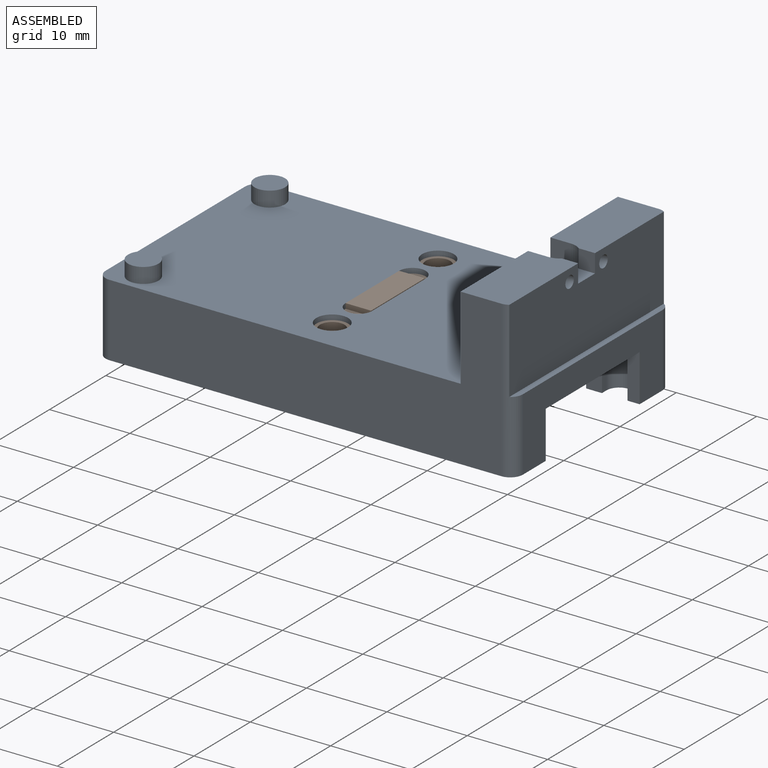
[diagram: assembled view]
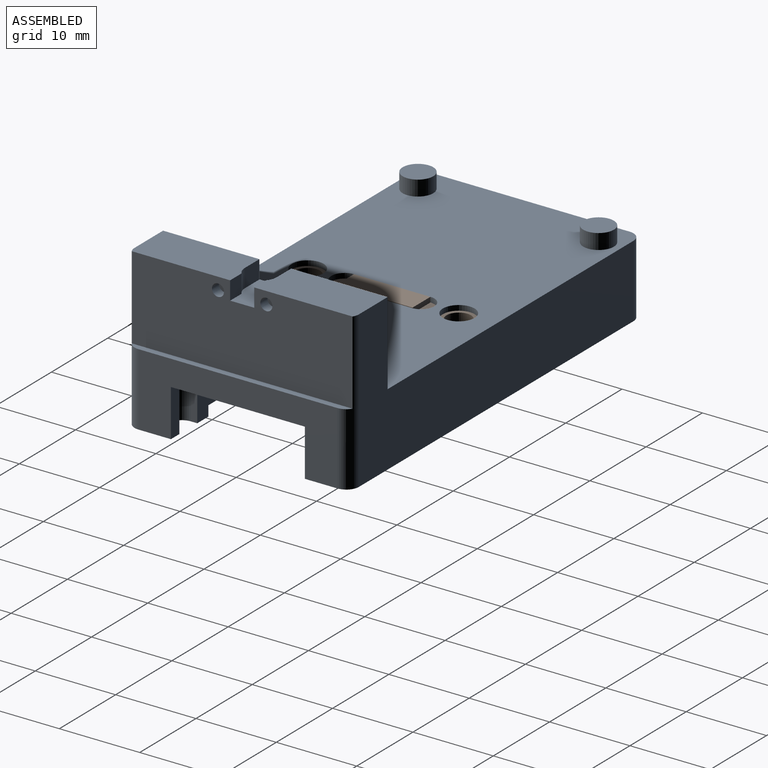
[diagram: assembled view, second angle]
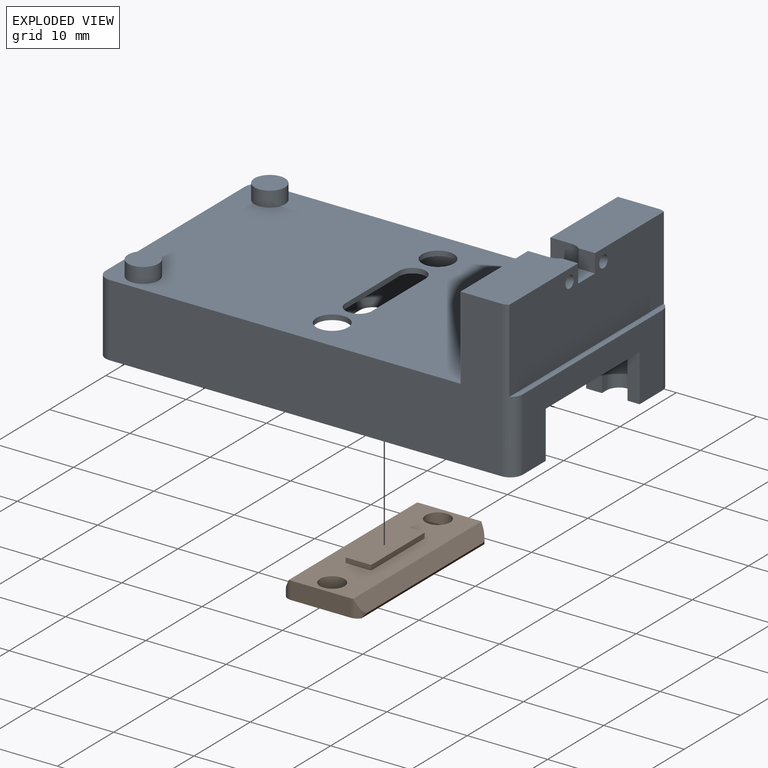
[diagram: exploded view]
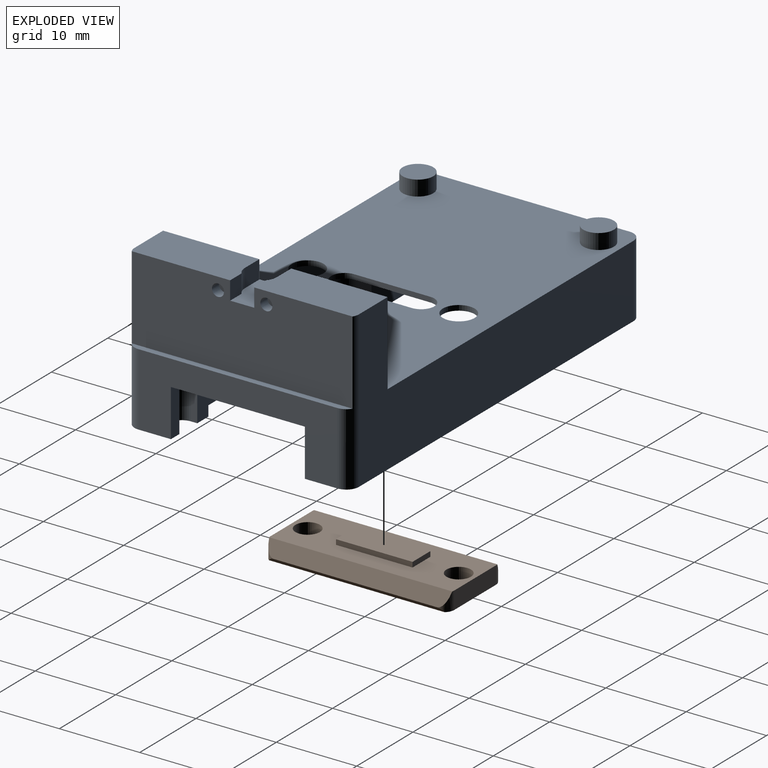
[diagram: exploded view, second angle]
ASSEMBLY  parts=2 mates=2
PART A: 68 faces, bbox 51.9x27.9x19.4 mm
  f0: plane 27.94x10.36mm, normal (-1,0,0), area 280.5mm2, adj f16,f18,f20,f21,f28,f29,f64,f65
  f1: plane 2.29x2.03mm, normal (0,-1,0), area 4.6mm2, adj f3,f28,f29,f67
  f2: plane 2.29x2.03mm, normal (0,1,0), area 4.6mm2, adj f3,f16,f29,f66
  f3: plane 27.48x10.36mm, normal (1,0,0), area 274.4mm2, adj f1,f2,f16,f17,f28,f29,f58,f59
  f4: plane 36.78x24.38mm, normal (0,0,-1), area 726.5mm2, adj f10,f12,f15,f22,f23,f30,f31,f32
  f5: plane 51.94x5.63mm, normal (0,0,-1), area 163.3mm2, adj f6,f9,f15,f19,f21,f35,f36,f39
  f6: plane 5.87x1.51mm, normal (0,-1,0), area 8.9mm2, adj f5,f14,f19,f43
  f7: plane 5.87x1.51mm, normal (0,1,0), area 8.9mm2, adj f13,f14,f19,f41
  f8: plane 2.26x1.27mm, normal (-1,0,0), area 2.9mm2, adj f13,f34,f40,f47
  f9: plane 2.26x1.27mm, normal (-1,0,0), area 2.9mm2, adj f5,f11,f39,f48
  f10: plane 21.2x7.14mm, normal (-1,0,0), area 74.7mm2, adj f4,f11,f14,f34,f39,f40,f49,f51
  f11: plane 10.1x3.85mm, normal (0,0,-1), area 32.8mm2, adj f9,f10,f35,f39,f48,f51
  f12: plane 8.41x1.76mm, normal (1,0,0), area 14.8mm2, adj f4,f13,f37,f50
  f13: plane 51.94x5.63mm, normal (0,0,-1), area 163.3mm2, adj f7,f8,f12,f19,f20,f37,f38,f40
  f14: plane 21.46x15.16mm, normal (0,0,-1), area 265.9mm2, adj f6,f7,f10,f19,f39,f40,f41,f42
  f15: plane 8.41x1.76mm, normal (1,0,0), area 14.8mm2, adj f4,f5,f36,f52
  f16: plane 12.47x5.89mm, normal (0,0,1), area 71.8mm2, adj f0,f2,f3,f20,f59,f64,f66
  f17: plane 27.48x0.76mm, normal (0,0,1), area 20.3mm2, adj f3,f19,f58,f59
  f18: plane 45.29x27.94mm, normal (0,0,1), area 1176.8mm2, adj f0,f20,f21,f22,f23,f24,f26,f30
  f19: plane 24.77x9.04mm, normal (1,0,0), area 126.1mm2, adj f5,f6,f7,f13,f14,f17,f58,f59
  f20: plane 48.77x19.41mm, normal (0,-1,0), area 493.5mm2, adj f0,f13,f16,f18,f56,f59
  f21: plane 48.77x19.41mm, normal (0,1,0), area 493.5mm2, adj f0,f5,f18,f28,f57,f58
  f22: cylinder r=1.98mm len=3.96mm, axis (0,0,1), area 7.9mm2, adj f4,f18
  f23: cylinder r=1.98mm len=3.96mm, axis (0,0,1), area 7.9mm2, adj f4,f18
  f24: cylinder r=1.91mm len=3.81mm, axis (0,0,-1), area 22.8mm2, adj f18,f25
  f25: plane 3.81x3.81mm, normal (0,0,1), area 11.4mm2, adj f24
  f26: cylinder r=1.91mm len=3.81mm, axis (0,0,-1), area 22.8mm2, adj f18,f27
  f27: plane 3.81x3.81mm, normal (0,0,1), area 11.4mm2, adj f26
  f28: plane 12.47x5.89mm, normal (0,0,1), area 71.8mm2, adj f0,f1,f3,f21,f58,f65,f67
  f29: plane 5.89x3.97mm, normal (0,0,1), area 21mm2, adj f0,f1,f2,f3,f64,f65,f66,f67
  f30: plane 9.53x0.64mm, normal (-1,0,0), area 6mm2, adj f4,f18,f31,f33
  f31: cylinder r=1.65mm len=3.3mm, axis (0,0,-1), area 3.3mm2, adj f4,f18,f30,f32
  f32: plane 9.53x0.64mm, normal (1,0,0), area 6mm2, adj f4,f18,f31,f33
  f33: cylinder r=1.65mm len=3.3mm, axis (0,0,-1), area 3.3mm2, adj f4,f18,f30,f32
  f34: plane 10.1x3.85mm, normal (0,0,-1), area 32.8mm2, adj f8,f10,f38,f40,f47,f49
  f35: plane 26.54x8.41mm, normal (0,-1,0), area 162.4mm2, adj f4,f5,f11,f48,f51,f52
  f36: plane 13.98x8.41mm, normal (0,-1,0), area 117.6mm2, adj f4,f5,f15,f55
  f37: plane 13.98x8.41mm, normal (0,1,0), area 117.6mm2, adj f4,f12,f13,f54
  f38: plane 26.54x8.41mm, normal (0,1,0), area 162.4mm2, adj f4,f13,f34,f47,f49,f50
  f39: plane 10.48x5.87mm, normal (0,-1,0), area 50.7mm2, adj f5,f9,f10,f11,f14,f44
  f40: plane 10.48x5.87mm, normal (0,1,0), area 50.7mm2, adj f8,f10,f13,f14,f34,f42
  f41: plane 5.87x0.81mm, normal (-1,0,0), area 4.7mm2, adj f7,f13,f14,f45
  f42: plane 5.87x0.81mm, normal (1,0,0), area 4.7mm2, adj f13,f14,f40,f45
  f43: plane 5.87x0.81mm, normal (-1,0,0), area 4.7mm2, adj f5,f6,f14,f46
  f44: plane 5.87x0.81mm, normal (1,0,0), area 4.7mm2, adj f5,f14,f39,f46
  f45: cylinder r=1.59mm len=5.87mm, axis (0,0,-1), area 29.3mm2, adj f13,f14,f41,f42
  f46: cylinder r=1.59mm len=5.87mm, axis (0,0,1), area 29.3mm2, adj f5,f14,f43,f44
  f47: cylinder r=1.59mm len=1.59mm, axis (0,0,-1), area 3.2mm2, adj f8,f13,f34,f38
  f48: cylinder r=1.59mm len=1.59mm, axis (0,0,1), area 3.2mm2, adj f5,f9,f11,f35
  f49: cylinder r=1.59mm len=7.14mm, axis (0,0,1), area 17.8mm2, adj f4,f10,f34,f38
  f50: cylinder r=1.59mm len=8.41mm, axis (0,0,-1), area 21mm2, adj f4,f12,f13,f38
  f51: cylinder r=1.59mm len=7.14mm, axis (0,0,-1), area 17.8mm2, adj f4,f10,f11,f35
  f52: cylinder r=1.59mm len=8.41mm, axis (0,0,1), area 21mm2, adj f4,f5,f15,f35
  f53: plane 24.77x9.04mm, normal (-1,0,0), area 48.6mm2, adj f4,f5,f13,f18,f54,f55,f56,f57
  f54: cylinder r=1.59mm len=8.41mm, axis (0,0,1), area 21mm2, adj f4,f13,f37,f53
  f55: cylinder r=1.59mm len=8.41mm, axis (0,0,-1), area 21mm2, adj f4,f5,f36,f53
  f56: cylinder r=1.59mm len=9.04mm, axis (0,0,-1), area 22.5mm2, adj f13,f18,f20,f53
  f57: cylinder r=1.59mm len=9.04mm, axis (0,0,1), area 22.5mm2, adj f5,f18,f21,f53
  f58: cylinder r=1.59mm len=19.41mm, axis (0,0,1), area 31.5mm2, adj f3,f5,f17,f19,f21,f28
  f59: cylinder r=1.59mm len=19.41mm, axis (0,0,-1), area 31.5mm2, adj f3,f13,f16,f17,f19,f20
  f60: cylinder r=0.75mm len=1.5mm, axis (1,0,0), area 6mm2, adj f3,f61
  f61: plane 1.5x1.5mm, normal (1,0,0), area 1.8mm2, adj f60
  f62: cylinder r=0.75mm len=1.5mm, axis (1,0,0), area 6mm2, adj f3,f63
  f63: plane 1.5x1.5mm, normal (1,0,0), area 1.8mm2, adj f62
  f64: plane 2.56x2.29mm, normal (0,1,0), area 5.9mm2, adj f0,f16,f29,f66
  f65: plane 2.56x2.29mm, normal (0,-1,0), area 5.9mm2, adj f0,f28,f29,f67
  f66: cylinder r=1.98mm len=2.29mm, axis (0,0,1), area 3.2mm2, adj f2,f16,f29,f64
  f67: cylinder r=1.98mm len=2.29mm, axis (0,0,1), area 3.2mm2, adj f1,f28,f29,f65
PART B: 19 faces, bbox 9.9x22.9x2.8 mm
  f0: plane 22.86x7.99mm, normal (0,0,1), area 137.9mm2, adj f2,f3,f4,f5,f9,f10,f11,f12
  f1: plane 22.86x9.4mm, normal (0,0,-1), area 199.6mm2, adj f4,f5,f6,f7,f13,f14,f15,f16
  f2: plane 22.79x1.74mm, normal (0.87,0,0.48), area 44.1mm2, adj f0,f6,f17,f18
  f3: plane 22.79x1.74mm, normal (-0.87,0,0.48), area 44.1mm2, adj f0,f7,f15,f16
  f4: plane 7.38x2.18mm, normal (0,-1,0), area 16.1mm2, adj f0,f1,f15,f18
  f5: plane 7.38x2.18mm, normal (0,1,0), area 16.1mm2, adj f0,f1,f16,f17
  f6: plane 21.86x0.44mm, normal (0.86,0,-0.51), area 11mm2, adj f1,f2,f17,f18
  f7: plane 21.86x0.44mm, normal (-0.86,0,-0.51), area 11mm2, adj f1,f3,f15,f16
  f8: plane 9.53x3.18mm, normal (0,0,1), area 30.2mm2, adj f9,f10,f11,f12
  f9: plane 9.53x0.64mm, normal (-1,0,0), area 6mm2, adj f0,f8,f11,f12
  f10: plane 9.53x0.64mm, normal (1,0,0), area 6mm2, adj f0,f8,f11,f12
  f11: plane 3.18x0.64mm, normal (0,-1,0), area 2mm2, adj f0,f8,f9,f10
  f12: plane 3.18x0.64mm, normal (0,1,0), area 2mm2, adj f0,f8,f9,f10
  f13: cylinder r=1.52mm len=3.05mm, axis (0,0,1), area 20.9mm2, adj f0,f1
  f14: cylinder r=1.52mm len=3.05mm, axis (0,0,1), area 20.9mm2, adj f0,f1
  f15: cylinder r=1.27mm len=2.18mm, axis (0,0,-1), area 2.2mm2, adj f0,f1,f3,f4,f7
  f16: cylinder r=1.27mm len=2.18mm, axis (0,0,-1), area 2.2mm2, adj f0,f1,f3,f5,f7
  f17: cylinder r=1.27mm len=2.18mm, axis (0,0,-1), area 2.2mm2, adj f0,f1,f2,f5,f6
  f18: cylinder r=1.27mm len=2.18mm, axis (0,0,-1), area 2.2mm2, adj f0,f1,f2,f4,f6
PLACE A t=(2.25,6.27,19.84)mm
PLACE B t=(2.25,6.27,19.84)mm
MATE planar B.f0 <-> A.f4  axis (0,0,1) through (-28.61,6.27,39.93)mm
MATE cylindrical B.f14 <-> A.f23  axis (0,0,1) through (-28.61,-3.13,39.93)mm
